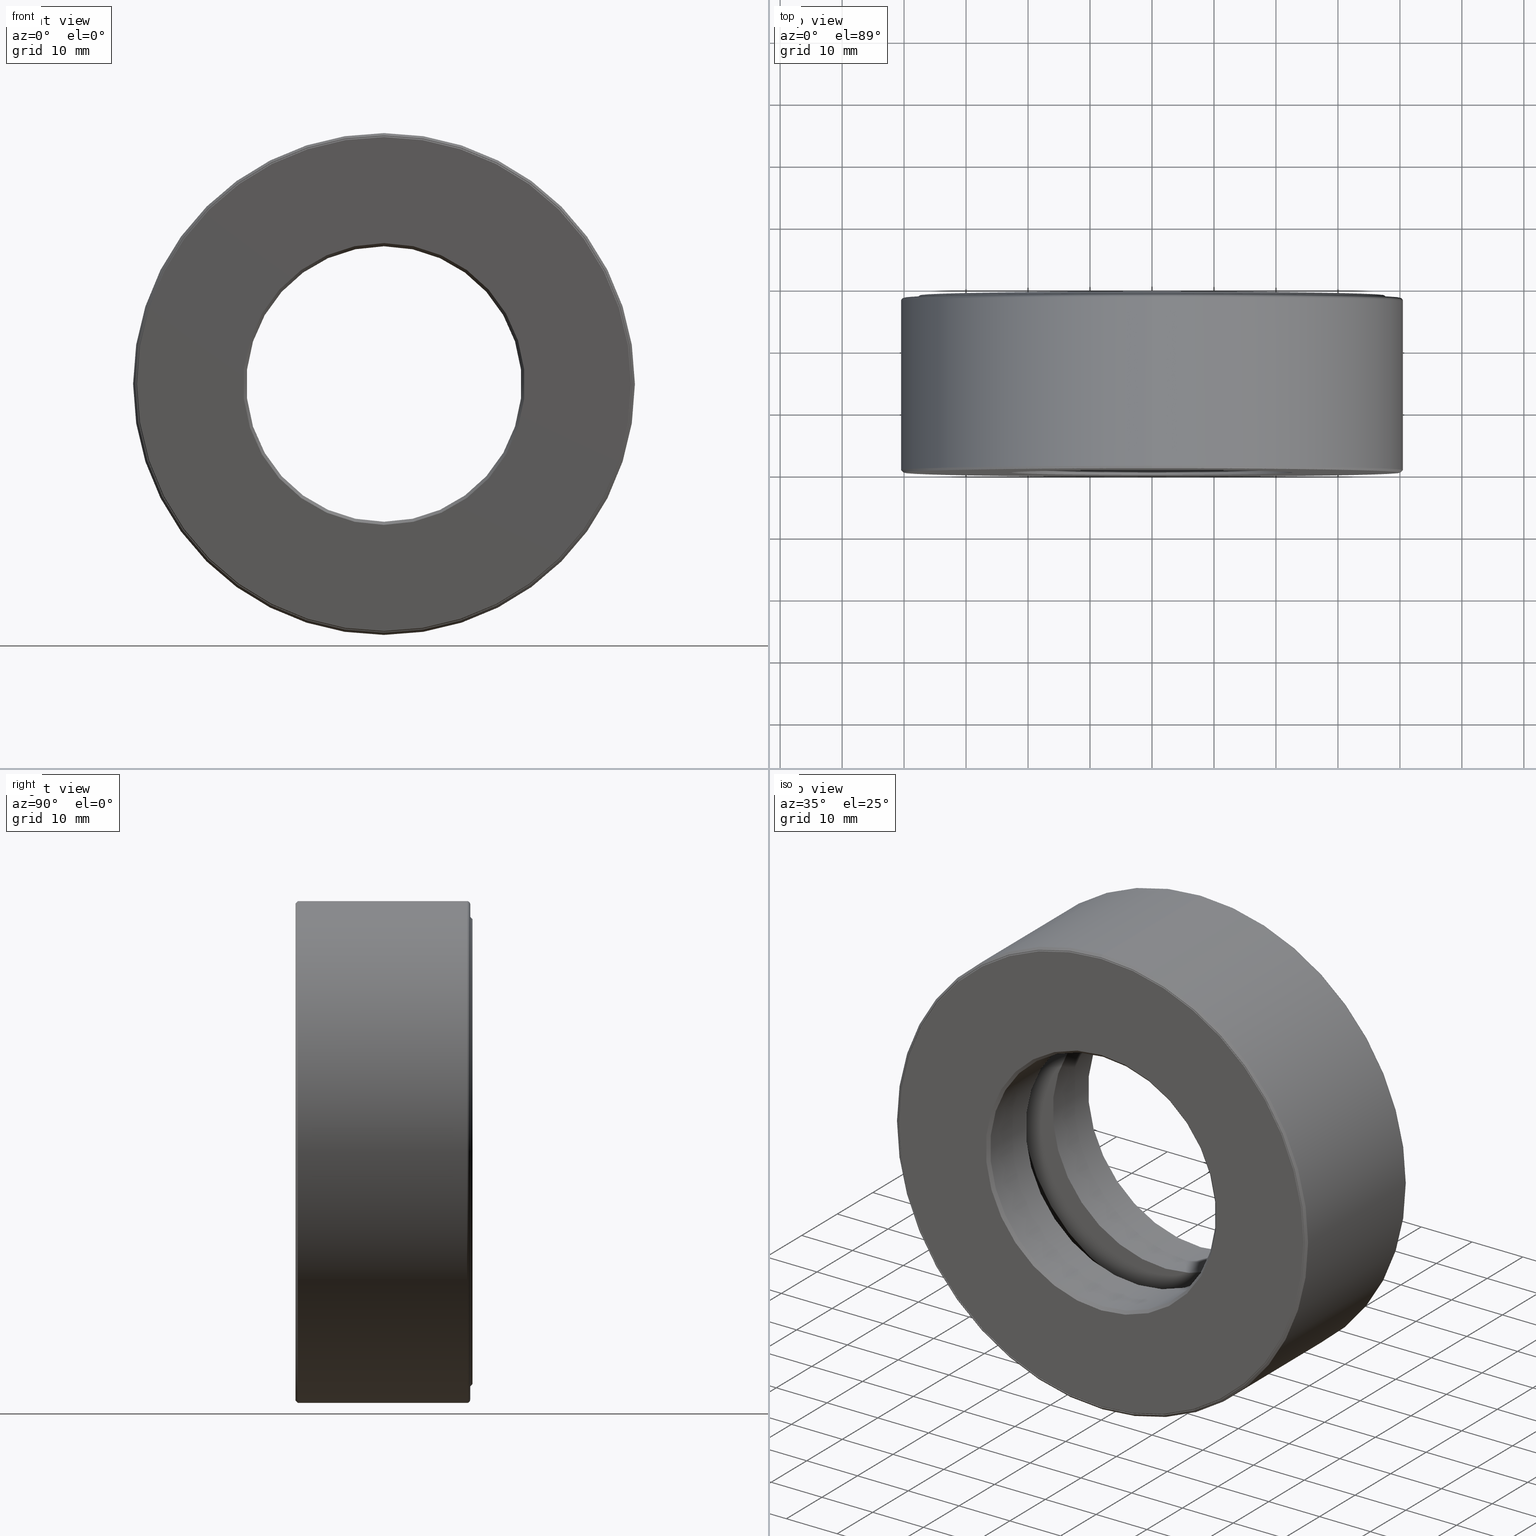
[diagram: canonical four-view strip — front | top / right | iso, engineering-drawing reading convention]
A machine part, canonical four-view strip (front | top / right | iso — engineering-drawing reading convention). The complete STEP part file that produces these views, byte-faithful:
ISO-10303-21;
HEADER;
FILE_DESCRIPTION (( 'STEP AP203' ),
    '1' );
FILE_NAME ('T-100-34.step',
    '2016-06-29T18:27:32',
    ( '' ),
    ( '' ),
    'SwSTEP 2.0',
    'SolidWorks 2016',
    '' );
FILE_SCHEMA (( 'CONFIG_CONTROL_DESIGN' ));
ENDSEC;

DATA;
#1 = CYLINDRICAL_SURFACE ( 'NONE', #434, 0.8750000000000001100 ) ;
#2 = AXIS2_PLACEMENT_3D ( 'NONE', #4, #155, #335 ) ;
#3 = DIRECTION ( 'NONE',  ( -0.0000000000000000000, 1.000000000000000000, -0.0000000000000000000 ) ) ;
#4 = CARTESIAN_POINT ( 'NONE',  ( 0.0000000000000000000, 0.0000000000000000000, 0.0000000000000000000 ) ) ;
#5 = CC_DESIGN_PERSON_AND_ORGANIZATION_ASSIGNMENT ( #395, #278, ( #416 ) ) ;
#6 = ORIENTED_EDGE ( 'NONE', *, *, #64, .T. ) ;
#7 = MANIFOLD_SOLID_BREP ( 'BALLS[3]', #567 ) ;
#8 = DIRECTION ( 'NONE',  ( 0.0000000000000000000, 0.0000000000000000000, 1.000000000000000000 ) ) ;
#9 = ORIENTED_EDGE ( 'NONE', *, *, #231, .F. ) ;
#10 = LOCAL_TIME ( 14, 27, 32.00000000000000000, #195 ) ;
#11 = CARTESIAN_POINT ( 'NONE',  ( 0.0000000000000000000, 0.0000000000000000000, 0.0000000000000000000 ) ) ;
#12 = AXIS2_PLACEMENT_3D ( 'NONE', #122, #266, #501 ) ;
#13 = FACE_OUTER_BOUND ( 'NONE', #394, .T. ) ;
#14 = FACE_BOUND ( 'NONE', #466, .T. ) ;
#15 = ORIENTED_EDGE ( 'NONE', *, *, #206, .T. ) ;
#16 = LOCAL_TIME ( 14, 27, 32.00000000000000000, #578 ) ;
#17 = FACE_OUTER_BOUND ( 'NONE', #21, .T. ) ;
#18 = FACE_OUTER_BOUND ( 'NONE', #215, .T. ) ;
#19 = EDGE_CURVE ( 'NONE', #449, #449, #201, .T. ) ;
#20 = PRODUCT_DEFINITION_SHAPE ( 'NONE', 'NONE',  #355 ) ;
#21 = EDGE_LOOP ( 'NONE', ( #79 ) ) ;
#22 = EDGE_LOOP ( 'NONE', ( #9 ) ) ;
#23 = CONICAL_SURFACE ( 'NONE', #226, 1.568749999999999400, 0.7853981633974812500 ) ;
#24 = DIRECTION ( 'NONE',  ( -0.0000000000000000000, 1.000000000000000000, 0.0000000000000000000 ) ) ;
#25 = CARTESIAN_POINT ( 'NONE',  ( 0.0000000000000000000, 1.109999999999999900, 0.0000000000000000000 ) ) ;
#26 = CARTESIAN_POINT ( 'NONE',  ( -8.911272171840075800E-033, 6.882976390286913400E-017, 0.0000000000000000000 ) ) ;
#27 = ORIENTED_EDGE ( 'NONE', *, *, #377, .T. ) ;
#28 = EDGE_LOOP ( 'NONE', ( #306 ) ) ;
#29 = EDGE_CURVE ( 'NONE', #485, #485, #596, .T. ) ;
#30 = ADVANCED_FACE ( 'NONE', ( #581, #454 ), #270, .F. ) ;
#31 = CLOSED_SHELL ( 'NONE', ( #458, #30, #453, #492, #179, #216, #322, #133, #316, #358, #401, #224, #500, #120, #542, #115 ) ) ;
#32 = PERSON_AND_ORGANIZATION ( #430, #487 ) ;
#33 = SPHERICAL_SURFACE ( 'NONE', #36, 0.2500000000000001100 ) ;
#34 = DIRECTION ( 'NONE',  ( -0.0000000000000000000, 1.000000000000000000, -0.0000000000000000000 ) ) ;
#35 = PLANE ( 'NONE',  #262 ) ;
#36 = AXIS2_PLACEMENT_3D ( 'NONE', #484, #62, #386 ) ;
#37 = CARTESIAN_POINT ( 'NONE',  ( 0.0000000000000000000, 0.7125000000000000200, 1.566749999999999900 ) ) ;
#38 = CIRCLE ( 'NONE', #171, 1.566749999999999900 ) ;
#39 = APPROVAL_STATUS ( 'not_yet_approved' ) ;
#40 = EDGE_LOOP ( 'NONE', ( #598 ) ) ;
#41 = AXIS2_PLACEMENT_3D ( 'NONE', #152, #295, #475 ) ;
#42 = CARTESIAN_POINT ( 'NONE',  ( 0.0000000000000000000, 1.125000000000000000, 0.0000000000000000000 ) ) ;
#43 = CARTESIAN_POINT ( 'NONE',  ( 0.0000000000000000000, 1.125000000000000000, 1.478750000000000000 ) ) ;
#44 = DIRECTION ( 'NONE',  ( 0.0000000000000000000, 0.0000000000000000000, 1.000000000000000000 ) ) ;
#45 = CARTESIAN_POINT ( 'NONE',  ( 0.0000000000000000000, 0.4124999999999999200, 1.514750000000000000 ) ) ;
#46 = AXIS2_PLACEMENT_3D ( 'NONE', #81, #447, #126 ) ;
#47 = DIRECTION ( 'NONE',  ( -0.0000000000000000000, 1.000000000000000000, -0.0000000000000000000 ) ) ;
#48 = PERSON_AND_ORGANIZATION_ROLE ( 'classification_officer' ) ;
#49 = DIRECTION ( 'NONE',  ( 0.0000000000000000000, 0.0000000000000000000, 1.000000000000000000 ) ) ;
#50 = ORIENTED_EDGE ( 'NONE', *, *, #54, .T. ) ;
#51 = LOCAL_TIME ( 14, 27, 32.00000000000000000, #483 ) ;
#52 = TOROIDAL_SURFACE ( 'NONE', #353, 1.314749999999999900, 0.2500000000000000600 ) ;
#53 = DIRECTION ( 'NONE',  ( 0.0000000000000000000, 0.0000000000000000000, 1.000000000000000000 ) ) ;
#54 = EDGE_CURVE ( 'NONE', #193, #193, #480, .T. ) ;
#55 = CLOSED_SHELL ( 'NONE', ( #210 ) ) ;
#56 = MANIFOLD_SOLID_BREP ( 'Revolve3', #209 ) ;
#57 = CARTESIAN_POINT ( 'NONE',  ( 0.0000000000000000000, 1.125000000000000000, 0.0000000000000000000 ) ) ;
#58 = PERSON_AND_ORGANIZATION ( #430, #487 ) ;
#59 = CC_DESIGN_APPROVAL ( #526, ( #416 ) ) ;
#60 = CIRCLE ( 'NONE', #408, 1.593749999999999300 ) ;
#61 = DIRECTION ( 'NONE',  ( 0.0000000000000000000, -1.000000000000000000, 0.0000000000000000000 ) ) ;
#62 = DIRECTION ( 'NONE',  ( 6.982962677686269100E-015, -0.0000000000000000000, 1.000000000000000000 ) ) ;
#63 = ORIENTED_EDGE ( 'NONE', *, *, #80, .T. ) ;
#64 = EDGE_CURVE ( 'NONE', #550, #550, #138, .T. ) ;
#65 = VERTEX_POINT ( 'NONE', #82 ) ;
#66 = EDGE_LOOP ( 'NONE', ( #252 ) ) ;
#67 = AXIS2_PLACEMENT_3D ( 'NONE', #218, #77, #536 ) ;
#68 = CALENDAR_DATE ( 2016, 29, 6 ) ;
#69 = VERTEX_POINT ( 'NONE', #43 ) ;
#70 = CC_DESIGN_PERSON_AND_ORGANIZATION_ASSIGNMENT ( #531, #48, ( #135 ) ) ;
#71 = DIRECTION ( 'NONE',  ( 0.0000000000000000000, 0.0000000000000000000, 1.000000000000000000 ) ) ;
#72 = CIRCLE ( 'NONE', #321, 1.513749999999999900 ) ;
#73 = ORIENTED_EDGE ( 'NONE', *, *, #157, .F. ) ;
#74 = CARTESIAN_POINT ( 'NONE',  ( -1.377127527073202700E-014, 0.5625000000000000000, -1.314749999999999900 ) ) ;
#75 = ORIENTED_EDGE ( 'NONE', *, *, #64, .F. ) ;
#76 = CARTESIAN_POINT ( 'NONE',  ( 0.0000000000000000000, 0.7125000000000000200, 0.0000000000000000000 ) ) ;
#77 = DIRECTION ( 'NONE',  ( -0.0000000000000000000, 1.000000000000000000, -0.0000000000000000000 ) ) ;
#78 = CARTESIAN_POINT ( 'NONE',  ( 0.0000000000000000000, 0.7125000000000000200, 0.0000000000000000000 ) ) ;
#79 = ORIENTED_EDGE ( 'NONE', *, *, #493, .F. ) ;
#80 = EDGE_CURVE ( 'NONE', #148, #148, #38, .T. ) ;
#81 = CARTESIAN_POINT ( 'NONE',  ( 0.0000000000000000000, 0.4124999999999999200, 0.0000000000000000000 ) ) ;
#82 = CARTESIAN_POINT ( 'NONE',  ( 0.0000000000000000000, -6.781474164570169800E-017, 1.573749999999999800 ) ) ;
#83 = APPROVAL_DATE_TIME ( #300, #526 ) ;
#84 = FACE_OUTER_BOUND ( 'NONE', #22, .T. ) ;
#85 = DIRECTION ( 'NONE',  ( -0.0000000000000000000, 1.000000000000000000, -0.0000000000000000000 ) ) ;
#86 = AXIS2_PLACEMENT_3D ( 'NONE', #248, #304, #159 ) ;
#87 = ORIENTED_EDGE ( 'NONE', *, *, #185, .T. ) ;
#88 = CARTESIAN_POINT ( 'NONE',  ( 4.590425090244009700E-015, 0.5625000000000000000, 1.314749999999999900 ) ) ;
#89 =( NAMED_UNIT ( * ) SI_UNIT ( $, .STERADIAN. ) SOLID_ANGLE_UNIT ( ) );
#90 = EDGE_LOOP ( 'NONE', ( #63 ) ) ;
#91 = DIRECTION ( 'NONE',  ( -3.491481338843134500E-015, 0.0000000000000000000, -1.000000000000000000 ) ) ;
#92 = MANIFOLD_SOLID_BREP ( 'BALLS[2]', #525 ) ;
#93 = VERTEX_POINT ( 'NONE', #424 ) ;
#94 = CARTESIAN_POINT ( 'NONE',  ( 0.0000000000000000000, 1.109999999999999900, 0.0000000000000000000 ) ) ;
#95 = EDGE_CURVE ( 'NONE', #488, #488, #337, .T. ) ;
#96 = DIRECTION ( 'NONE',  ( 0.0000000000000000000, -0.0000000000000000000, -1.000000000000000000 ) ) ;
#97 = EDGE_LOOP ( 'NONE', ( #502 ) ) ;
#98 = DIRECTION ( 'NONE',  ( -0.0000000000000000000, 1.000000000000000000, -0.0000000000000000000 ) ) ;
#99 = CC_DESIGN_PERSON_AND_ORGANIZATION_ASSIGNMENT ( #32, #548, ( #416 ) ) ;
#100 = PLANE ( 'NONE',  #340 ) ;
#101 = VERTEX_POINT ( 'NONE', #467 ) ;
#102 = CIRCLE ( 'NONE', #194, 1.478750000000000000 ) ;
#103 = DIRECTION ( 'NONE',  ( 0.0000000000000000000, 0.0000000000000000000, 1.000000000000000000 ) ) ;
#104 = AXIS2_PLACEMENT_3D ( 'NONE', #88, #139, #91 ) ;
#105 = EDGE_LOOP ( 'NONE', ( #354 ) ) ;
#106 = EDGE_LOOP ( 'NONE', ( #428 ) ) ;
#107 = DIRECTION ( 'NONE',  ( 0.0000000000000000000, -0.0000000000000000000, -1.000000000000000000 ) ) ;
#108 = CIRCLE ( 'NONE', #366, 1.578749999999999900 ) ;
#109 = EDGE_LOOP ( 'NONE', ( #230 ) ) ;
#110 = ORIENTED_EDGE ( 'NONE', *, *, #314, .F. ) ;
#111 = DATE_AND_TIME ( #68, #51 ) ;
#112 = AXIS2_PLACEMENT_3D ( 'NONE', #554, #551, #280 ) ;
#113 = FACE_BOUND ( 'NONE', #109, .T. ) ;
#114 = FACE_OUTER_BOUND ( 'NONE', #370, .T. ) ;
#115 = ADVANCED_FACE ( 'NONE', ( #244, #393 ), #35, .F. ) ;
#116 = EDGE_LOOP ( 'NONE', ( #413 ) ) ;
#117 = DIRECTION ( 'NONE',  ( 0.0000000000000000000, 0.0000000000000000000, 1.000000000000000000 ) ) ;
#118 = DATE_AND_TIME ( #404, #357 ) ;
#119 = DIRECTION ( 'NONE',  ( -0.0000000000000000000, 1.000000000000000000, -0.0000000000000000000 ) ) ;
#120 = ADVANCED_FACE ( 'NONE', ( #342, #14 ), #444, .F. ) ;
#121 = CYLINDRICAL_SURFACE ( 'NONE', #2, 1.573750000000000200 ) ;
#122 = CARTESIAN_POINT ( 'NONE',  ( 0.0000000000000000000, 0.4124999999999999200, 0.0000000000000000000 ) ) ;
#123 = CARTESIAN_POINT ( 'NONE',  ( 0.0000000000000000000, 0.4124999999999999200, 0.0000000000000000000 ) ) ;
#124 = EDGE_CURVE ( 'NONE', #220, #220, #265, .T. ) ;
#125 = EDGE_LOOP ( 'NONE', ( #345 ) ) ;
#126 = DIRECTION ( 'NONE',  ( 0.0000000000000000000, 0.0000000000000000000, 1.000000000000000000 ) ) ;
#127 = EDGE_LOOP ( 'NONE', ( #73 ) ) ;
#128 = ADVANCED_FACE ( 'NONE', ( #520, #486 ), #556, .T. ) ;
#129 = ORIENTED_EDGE ( 'NONE', *, *, #206, .F. ) ;
#130 = PERSON_AND_ORGANIZATION ( #430, #487 ) ;
#131 = CARTESIAN_POINT ( 'NONE',  ( 0.0000000000000000000, 1.089999999999999900, 0.0000000000000000000 ) ) ;
#132 = VERTEX_POINT ( 'NONE', #599 ) ;
#133 = ADVANCED_FACE ( 'NONE', ( #606, #435 ), #198, .T. ) ;
#134 = DIRECTION ( 'NONE',  ( 0.0000000000000000000, -1.000000000000000000, 0.0000000000000000000 ) ) ;
#135 = SECURITY_CLASSIFICATION ( '', '', #462 ) ;
#136 = CARTESIAN_POINT ( 'NONE',  ( 0.0000000000000000000, 0.0000000000000000000, 0.0000000000000000000 ) ) ;
#137 = DATE_TIME_ROLE ( 'creation_date' ) ;
#138 = CIRCLE ( 'NONE', #142, 0.8750000000000000000 ) ;
#139 = DIRECTION ( 'NONE',  ( -1.000000000000000000, 0.0000000000000000000, 3.491481338843134500E-015 ) ) ;
#140 = FACE_OUTER_BOUND ( 'NONE', #105, .T. ) ;
#141 = DIRECTION ( 'NONE',  ( 0.0000000000000000000, 0.0000000000000000000, 1.000000000000000000 ) ) ;
#142 = AXIS2_PLACEMENT_3D ( 'NONE', #498, #274, #442 ) ;
#143 = PLANE ( 'NONE',  #397 ) ;
#144 = CARTESIAN_POINT ( 'NONE',  ( 0.0000000000000000000, 0.4125000000000000900, 0.8750000000000001100 ) ) ;
#145 = ORIENTED_EDGE ( 'NONE', *, *, #474, .T. ) ;
#146 = EDGE_LOOP ( 'NONE', ( #576 ) ) ;
#147 = DIRECTION ( 'NONE',  ( -0.0000000000000000000, 1.000000000000000000, -0.0000000000000000000 ) ) ;
#148 = VERTEX_POINT ( 'NONE', #234 ) ;
#149 = FACE_OUTER_BOUND ( 'NONE', #356, .T. ) ;
#150 = DIRECTION ( 'NONE',  ( 0.0000000000000000000, 0.0000000000000000000, 1.000000000000000000 ) ) ;
#151 = EDGE_CURVE ( 'NONE', #101, #101, #348, .T. ) ;
#152 = CARTESIAN_POINT ( 'NONE',  ( 0.0000000000000000000, -6.829619984160658000E-017, 0.0000000000000000000 ) ) ;
#153 = MANIFOLD_SOLID_BREP ( 'Revolve2[1]', #31 ) ;
#154 = EDGE_LOOP ( 'NONE', ( #368 ) ) ;
#155 = DIRECTION ( 'NONE',  ( -0.0000000000000000000, 1.000000000000000000, -0.0000000000000000000 ) ) ;
#156 = ORIENTED_EDGE ( 'NONE', *, *, #124, .T. ) ;
#157 = EDGE_CURVE ( 'NONE', #309, #309, #72, .T. ) ;
#158 = AXIS2_PLACEMENT_3D ( 'NONE', #94, #147, #471 ) ;
#159 = DIRECTION ( 'NONE',  ( 0.0000000000000000000, 0.0000000000000000000, 1.000000000000000000 ) ) ;
#160 = ORIENTED_EDGE ( 'NONE', *, *, #95, .F. ) ;
#161 = EDGE_LOOP ( 'NONE', ( #15 ) ) ;
#162 = COORDINATED_UNIVERSAL_TIME_OFFSET ( 5, 0, .BEHIND. ) ;
#163 = FACE_OUTER_BOUND ( 'NONE', #116, .T. ) ;
#164 = AXIS2_PLACEMENT_3D ( 'NONE', #301, #432, #53 ) ;
#165 = ORIENTED_EDGE ( 'NONE', *, *, #185, .F. ) ;
#166 = APPROVAL_DATE_TIME ( #111, #359 ) ;
#167 = CC_DESIGN_DATE_AND_TIME_ASSIGNMENT ( #312, #374, ( #135 ) ) ;
#168 = FACE_OUTER_BOUND ( 'NONE', #583, .T. ) ;
#169 = CARTESIAN_POINT ( 'NONE',  ( -1.175064960778426000E-016, 0.4125000000000000300, 0.0000000000000000000 ) ) ;
#170 = DIRECTION ( 'NONE',  ( -0.0000000000000000000, 1.000000000000000000, -0.0000000000000000000 ) ) ;
#171 = AXIS2_PLACEMENT_3D ( 'NONE', #217, #178, #592 ) ;
#172 = ORIENTED_EDGE ( 'NONE', *, *, #540, .F. ) ;
#173 = DIRECTION ( 'NONE',  ( 0.0000000000000000000, 0.0000000000000000000, 1.000000000000000000 ) ) ;
#174 = FACE_OUTER_BOUND ( 'NONE', #415, .T. ) ;
#175 = ADVANCED_FACE ( 'NONE', ( ), #284, .T. ) ;
#176 = DIRECTION ( 'NONE',  ( -0.0000000000000000000, 1.000000000000000000, -0.0000000000000000000 ) ) ;
#177 = DIRECTION ( 'NONE',  ( 0.0000000000000000000, 0.0000000000000000000, 1.000000000000000000 ) ) ;
#178 = DIRECTION ( 'NONE',  ( -0.0000000000000000000, 1.000000000000000000, -0.0000000000000000000 ) ) ;
#179 = ADVANCED_FACE ( 'NONE', ( #352, #433 ), #273, .F. ) ;
#180 = EDGE_CURVE ( 'NONE', #579, #579, #60, .T. ) ;
#181 = EDGE_LOOP ( 'NONE', ( #160 ) ) ;
#182 = MECHANICAL_CONTEXT ( 'NONE', #603, 'mechanical' ) ;
#183 = APPROVAL_PERSON_ORGANIZATION ( #308, #526, #333 ) ;
#184 = CARTESIAN_POINT ( 'NONE',  ( 0.0000000000000000000, 0.02000000000000046900, 0.0000000000000000000 ) ) ;
#185 = EDGE_CURVE ( 'NONE', #65, #65, #489, .T. ) ;
#186 = CIRCLE ( 'NONE', #164, 1.114749999999999900 ) ;
#187 = DIRECTION ( 'NONE',  ( 0.0000000000000000000, -0.0000000000000000000, -1.000000000000000000 ) ) ;
#188 = DIRECTION ( 'NONE',  ( 1.000000000000000000, 0.0000000000000000000, 0.0000000000000000000 ) ) ;
#189 = CARTESIAN_POINT ( 'NONE',  ( 0.0000000000000000000, 1.104999999999999500, 0.8750000000000001100 ) ) ;
#190 = DIRECTION ( 'NONE',  ( 0.0000000000000000000, -1.000000000000000000, 0.0000000000000000000 ) ) ;
#191 = EDGE_LOOP ( 'NONE', ( #172 ) ) ;
#192 = CARTESIAN_POINT ( 'NONE',  ( 0.0000000000000000000, 0.4124999999999999200, 1.573749999999999800 ) ) ;
#193 = VERTEX_POINT ( 'NONE', #45 ) ;
#194 = AXIS2_PLACEMENT_3D ( 'NONE', #57, #479, #8 ) ;
#195 = COORDINATED_UNIVERSAL_TIME_OFFSET ( 5, 0, .BEHIND. ) ;
#196 = FACE_OUTER_BOUND ( 'NONE', #251, .T. ) ;
#197 = PLANE ( 'NONE',  #298 ) ;
#198 = CYLINDRICAL_SURFACE ( 'NONE', #305, 1.593749999999999600 ) ;
#199 = ORIENTED_EDGE ( 'NONE', *, *, #575, .T. ) ;
#200 = AXIS2_PLACEMENT_3D ( 'NONE', #42, #134, #277 ) ;
#201 = CIRCLE ( 'NONE', #555, 1.513749999999999900 ) ;
#202 = PERSON_AND_ORGANIZATION ( #430, #487 ) ;
#203 = CC_DESIGN_APPROVAL ( #359, ( #135 ) ) ;
#204 = SPHERICAL_SURFACE ( 'NONE', #330, 0.2500000000000001100 ) ;
#205 = CIRCLE ( 'NONE', #482, 1.573749999999999800 ) ;
#206 = EDGE_CURVE ( 'NONE', #363, #363, #552, .T. ) ;
#207 = EDGE_LOOP ( 'NONE', ( #558 ) ) ;
#208 = PLANE ( 'NONE',  #283 ) ;
#209 = CLOSED_SHELL ( 'NONE', ( #175 ) ) ;
#210 = ADVANCED_FACE ( 'NONE', ( ), #302, .T. ) ;
#211 = CARTESIAN_POINT ( 'NONE',  ( 0.0000000000000000000, 1.125000000000000000, 0.0000000000000000000 ) ) ;
#212 = CARTESIAN_POINT ( 'NONE',  ( 0.0000000000000000000, 0.005000000000000232600, 0.0000000000000000000 ) ) ;
#213 = DIRECTION ( 'NONE',  ( -0.0000000000000000000, 1.000000000000000000, -0.0000000000000000000 ) ) ;
#214 = CARTESIAN_POINT ( 'NONE',  ( 0.0000000000000000000, 0.0000000000000000000, 0.0000000000000000000 ) ) ;
#215 = EDGE_LOOP ( 'NONE', ( #165 ) ) ;
#216 = ADVANCED_FACE ( 'NONE', ( #594, #13 ), #143, .F. ) ;
#217 = CARTESIAN_POINT ( 'NONE',  ( 0.0000000000000000000, 1.037000000000000100, 0.0000000000000000000 ) ) ;
#218 = CARTESIAN_POINT ( 'NONE',  ( 0.0000000000000000000, 0.5624999999999998900, 0.0000000000000000000 ) ) ;
#219 = CALENDAR_DATE ( 2016, 29, 6 ) ;
#220 = VERTEX_POINT ( 'NONE', #516 ) ;
#221 = DIRECTION ( 'NONE',  ( 0.0000000000000000000, 0.0000000000000000000, 1.000000000000000000 ) ) ;
#222 = FACE_BOUND ( 'NONE', #310, .T. ) ;
#223 = APPLICATION_PROTOCOL_DEFINITION ( 'international standard', 'config_control_design', 1994, #423 ) ;
#224 = ADVANCED_FACE ( 'NONE', ( #459, #533 ), #23, .T. ) ;
#225 = DIRECTION ( 'NONE',  ( -0.0000000000000000000, 1.000000000000000000, -0.0000000000000000000 ) ) ;
#226 = AXIS2_PLACEMENT_3D ( 'NONE', #375, #524, #571 ) ;
#227 = EDGE_LOOP ( 'NONE', ( #145 ) ) ;
#228 = CARTESIAN_POINT ( 'NONE',  ( 0.0000000000000000000, 0.7125000000000000200, 0.8750000000000001100 ) ) ;
#229 = ORIENTED_EDGE ( 'NONE', *, *, #157, .T. ) ;
#230 = ORIENTED_EDGE ( 'NONE', *, *, #151, .T. ) ;
#231 = EDGE_CURVE ( 'NONE', #593, #593, #407, .T. ) ;
#232 = CYLINDRICAL_SURFACE ( 'NONE', #549, 0.8750000000000001100 ) ;
#233 = CARTESIAN_POINT ( 'NONE',  ( 0.0000000000000000000, 1.089999999999999900, 0.0000000000000000000 ) ) ;
#234 = CARTESIAN_POINT ( 'NONE',  ( 0.0000000000000000000, 1.037000000000000100, 1.566749999999999900 ) ) ;
#235 = CARTESIAN_POINT ( 'NONE',  ( 0.0000000000000000000, -6.722907171908147400E-017, 0.0000000000000000000 ) ) ;
#236 = EDGE_LOOP ( 'NONE', ( #229 ) ) ;
#237 = ORIENTED_EDGE ( 'NONE', *, *, #241, .F. ) ;
#238 = CARTESIAN_POINT ( 'NONE',  ( -8.058413836519987000E-033, -6.805547074365413900E-017, 0.0000000000000000000 ) ) ;
#239 = VERTEX_POINT ( 'NONE', #289 ) ;
#240 = CIRCLE ( 'NONE', #343, 0.8750000000000001100 ) ;
#241 = EDGE_CURVE ( 'NONE', #250, #250, #186, .T. ) ;
#242 = DIRECTION ( 'NONE',  ( -0.0000000000000000000, 1.000000000000000000, 0.0000000000000000000 ) ) ;
#243 = CC_DESIGN_SECURITY_CLASSIFICATION ( #135, ( #416 ) ) ;
#244 = FACE_BOUND ( 'NONE', #445, .T. ) ;
#245 = EDGE_CURVE ( 'NONE', #239, #239, #205, .T. ) ;
#246 = EDGE_LOOP ( 'NONE', ( #385 ) ) ;
#247 = AXIS2_PLACEMENT_3D ( 'NONE', #136, #141, #188 ) ;
#248 = CARTESIAN_POINT ( 'NONE',  ( 0.0000000000000000000, 1.104999999999999500, 0.0000000000000000000 ) ) ;
#249 = COORDINATED_UNIVERSAL_TIME_OFFSET ( 5, 0, .BEHIND. ) ;
#250 = VERTEX_POINT ( 'NONE', #595 ) ;
#251 = EDGE_LOOP ( 'NONE', ( #75 ) ) ;
#252 = ORIENTED_EDGE ( 'NONE', *, *, #575, .F. ) ;
#253 = AXIS2_PLACEMENT_3D ( 'NONE', #233, #557, #288 ) ;
#254 = CIRCLE ( 'NONE', #443, 1.573750000000000200 ) ;
#255 = FACE_OUTER_BOUND ( 'NONE', #40, .T. ) ;
#256 = AXIS2_PLACEMENT_3D ( 'NONE', #538, #119, #403 ) ;
#257 = EDGE_LOOP ( 'NONE', ( #402 ) ) ;
#258 = EDGE_LOOP ( 'NONE', ( #311 ) ) ;
#259 = AXIS2_PLACEMENT_3D ( 'NONE', #11, #344, #572 ) ;
#260 = TOROIDAL_SURFACE ( 'NONE', #303, 1.573749999999999800, 0.02000000000000005900 ) ;
#261 = DIRECTION ( 'NONE',  ( 0.0000000000000000000, 0.0000000000000000000, 1.000000000000000000 ) ) ;
#262 = AXIS2_PLACEMENT_3D ( 'NONE', #169, #411, #187 ) ;
#263 = DIRECTION ( 'NONE',  ( -0.0000000000000000000, 1.000000000000000000, -0.0000000000000000000 ) ) ;
#264 = ADVANCED_FACE ( 'NONE', ( #420, #149 ), #197, .T. ) ;
#265 = CIRCLE ( 'NONE', #253, 1.593750000000000000 ) ;
#266 = DIRECTION ( 'NONE',  ( 0.0000000000000000000, -1.000000000000000000, 0.0000000000000000000 ) ) ;
#267 = CLOSED_SHELL ( 'NONE', ( #264, #503, #450, #591, #410, #276, #128, #497 ) ) ;
#268 = DIRECTION ( 'NONE',  ( 0.0000000000000000000, 0.0000000000000000000, 1.000000000000000000 ) ) ;
#269 = ORIENTED_EDGE ( 'NONE', *, *, #474, .F. ) ;
#270 = PLANE ( 'NONE',  #12 ) ;
#271 = DIRECTION ( 'NONE',  ( 0.0000000000000000000, 0.0000000000000000000, 1.000000000000000000 ) ) ;
#272 = CIRCLE ( 'NONE', #535, 1.573749999999999800 ) ;
#273 = CYLINDRICAL_SURFACE ( 'NONE', #112, 1.513749999999999900 ) ;
#274 = DIRECTION ( 'NONE',  ( -0.0000000000000000000, 1.000000000000000000, -0.0000000000000000000 ) ) ;
#275 = DIRECTION ( 'NONE',  ( 1.047444401652940000E-014, 0.0000000000000000000, 1.000000000000000000 ) ) ;
#276 = ADVANCED_FACE ( 'NONE', ( #513, #313 ), #338, .T. ) ;
#277 = DIRECTION ( 'NONE',  ( 0.0000000000000000000, 0.0000000000000000000, -1.000000000000000000 ) ) ;
#278 = PERSON_AND_ORGANIZATION_ROLE ( 'design_supplier' ) ;
#279 = EDGE_LOOP ( 'NONE', ( #398 ) ) ;
#280 = DIRECTION ( 'NONE',  ( 0.0000000000000000000, 0.0000000000000000000, 1.000000000000000000 ) ) ;
#281 = EDGE_LOOP ( 'NONE', ( #110 ) ) ;
#282 = AXIS2_PLACEMENT_3D ( 'NONE', #76, #176, #173 ) ;
#283 = AXIS2_PLACEMENT_3D ( 'NONE', #26, #588, #261 ) ;
#284 = SPHERICAL_SURFACE ( 'NONE', #347, 0.2500000000000001100 ) ;
#285 = APPROVAL_STATUS ( 'not_yet_approved' ) ;
#286 = DIRECTION ( 'NONE',  ( 0.0000000000000000000, 0.0000000000000000000, -1.000000000000000000 ) ) ;
#287 = APPROVAL_ROLE ( '' ) ;
#288 = DIRECTION ( 'NONE',  ( 0.0000000000000000000, 0.0000000000000000000, 1.000000000000000000 ) ) ;
#289 = CARTESIAN_POINT ( 'NONE',  ( 0.0000000000000000000, 1.089999999999999900, 1.573749999999999800 ) ) ;
#290 = ORIENTED_EDGE ( 'NONE', *, *, #391, .F. ) ;
#291 = ORIENTED_EDGE ( 'NONE', *, *, #231, .T. ) ;
#292 = CARTESIAN_POINT ( 'NONE',  ( 0.0000000000000000000, 1.089999999999999900, 0.0000000000000000000 ) ) ;
#293 = AXIS2_PLACEMENT_3D ( 'NONE', #597, #225, #419 ) ;
#294 = CIRCLE ( 'NONE', #577, 1.114749999999999900 ) ;
#295 = DIRECTION ( 'NONE',  ( -0.0000000000000000000, 1.000000000000000000, -0.0000000000000000000 ) ) ;
#296 = DIRECTION ( 'NONE',  ( 0.0000000000000000000, -0.0000000000000000000, -1.000000000000000000 ) ) ;
#297 = ORIENTED_EDGE ( 'NONE', *, *, #534, .T. ) ;
#298 = AXIS2_PLACEMENT_3D ( 'NONE', #381, #61, #96 ) ;
#299 = EDGE_LOOP ( 'NONE', ( #290 ) ) ;
#300 = DATE_AND_TIME ( #219, #16 ) ;
#301 = CARTESIAN_POINT ( 'NONE',  ( 0.0000000000000000000, 0.4125000000000000300, 0.0000000000000000000 ) ) ;
#302 = SPHERICAL_SURFACE ( 'NONE', #104, 0.2500000000000001100 ) ;
#303 = AXIS2_PLACEMENT_3D ( 'NONE', #336, #568, #528 ) ;
#304 = DIRECTION ( 'NONE',  ( -0.0000000000000000000, 1.000000000000000000, -0.0000000000000000000 ) ) ;
#305 = AXIS2_PLACEMENT_3D ( 'NONE', #517, #85, #455 ) ;
#306 = ORIENTED_EDGE ( 'NONE', *, *, #19, .T. ) ;
#307 = ORIENTED_EDGE ( 'NONE', *, *, #180, .F. ) ;
#308 = PERSON_AND_ORGANIZATION ( #430, #487 ) ;
#309 = VERTEX_POINT ( 'NONE', #464 ) ;
#310 = EDGE_LOOP ( 'NONE', ( #199 ) ) ;
#311 = ORIENTED_EDGE ( 'NONE', *, *, #29, .F. ) ;
#312 = DATE_AND_TIME ( #431, #10 ) ;
#313 = FACE_BOUND ( 'NONE', #181, .T. ) ;
#314 = EDGE_CURVE ( 'NONE', #602, #602, #240, .T. ) ;
#315 = CC_DESIGN_PERSON_AND_ORGANIZATION_ASSIGNMENT ( #440, #421, ( #339 ) ) ;
#316 = ADVANCED_FACE ( 'NONE', ( #168, #222 ), #364, .T. ) ;
#317 = DIRECTION ( 'NONE',  ( -0.0000000000000000000, 1.000000000000000000, -0.0000000000000000000 ) ) ;
#318 = DIRECTION ( 'NONE',  ( -0.0000000000000000000, 1.000000000000000000, -0.0000000000000000000 ) ) ;
#319 = CONICAL_SURFACE ( 'NONE', #86, 0.8750000000000001100, 0.7853981633974415100 ) ;
#320 = CARTESIAN_POINT ( 'NONE',  ( 0.0000000000000000000, 0.0000000000000000000, 0.0000000000000000000 ) ) ;
#321 = AXIS2_PLACEMENT_3D ( 'NONE', #334, #511, #49 ) ;
#322 = ADVANCED_FACE ( 'NONE', ( #140, #114 ), #260, .T. ) ;
#323 = PLANE ( 'NONE',  #495 ) ;
#324 = EDGE_LOOP ( 'NONE', ( #291 ) ) ;
#325 = DIRECTION ( 'NONE',  ( 0.0000000000000000000, 0.0000000000000000000, 1.000000000000000000 ) ) ;
#326 = APPROVAL_PERSON_ORGANIZATION ( #130, #359, #367 ) ;
#327 = DIRECTION ( 'NONE',  ( 0.0000000000000000000, 0.0000000000000000000, 1.000000000000000000 ) ) ;
#328 = PERSON_AND_ORGANIZATION_ROLE ( 'creator' ) ;
#329 = FACE_OUTER_BOUND ( 'NONE', #589, .T. ) ;
#330 = AXIS2_PLACEMENT_3D ( 'NONE', #74, #362, #275 ) ;
#331 =( LENGTH_UNIT ( ) NAMED_UNIT ( * ) SI_UNIT ( $, .METRE. ) );
#332 = EDGE_LOOP ( 'NONE', ( #361 ) ) ;
#333 = APPROVAL_ROLE ( '' ) ;
#334 = CARTESIAN_POINT ( 'NONE',  ( 0.0000000000000000000, 1.089999999999999900, 0.0000000000000000000 ) ) ;
#335 = DIRECTION ( 'NONE',  ( 0.0000000000000000000, 0.0000000000000000000, 1.000000000000000000 ) ) ;
#336 = CARTESIAN_POINT ( 'NONE',  ( 0.0000000000000000000, 1.089999999999999900, 0.0000000000000000000 ) ) ;
#337 = CIRCLE ( 'NONE', #426, 0.8950000000000002400 ) ;
#338 = PLANE ( 'NONE',  #383 ) ;
#339 = PRODUCT ( 'T-100-34', 'T-100-34', '', ( #182 ) ) ;
#340 = AXIS2_PLACEMENT_3D ( 'NONE', #238, #242, #478 ) ;
#341 = CIRCLE ( 'NONE', #460, 1.514750000000000000 ) ;
#342 = FACE_OUTER_BOUND ( 'NONE', #279, .T. ) ;
#343 = AXIS2_PLACEMENT_3D ( 'NONE', #384, #563, #429 ) ;
#344 = DIRECTION ( 'NONE',  ( -0.0000000000000000000, 1.000000000000000000, -0.0000000000000000000 ) ) ;
#345 = ORIENTED_EDGE ( 'NONE', *, *, #391, .T. ) ;
#346 = SHAPE_DEFINITION_REPRESENTATION ( #20, #452 ) ;
#347 = AXIS2_PLACEMENT_3D ( 'NONE', #414, #286, #604 ) ;
#348 = CIRCLE ( 'NONE', #293, 0.8950000000000001300 ) ;
#349 = ORIENTED_EDGE ( 'NONE', *, *, #245, .F. ) ;
#350 = LOCAL_TIME ( 14, 27, 32.00000000000000000, #249 ) ;
#351 = FACE_OUTER_BOUND ( 'NONE', #258, .T. ) ;
#352 = FACE_OUTER_BOUND ( 'NONE', #127, .T. ) ;
#353 = AXIS2_PLACEMENT_3D ( 'NONE', #543, #399, #325 ) ;
#354 = ORIENTED_EDGE ( 'NONE', *, *, #377, .F. ) ;
#355 = PRODUCT_DEFINITION ( 'UNKNOWN', '', #416, #546 ) ;
#356 = EDGE_LOOP ( 'NONE', ( #129 ) ) ;
#357 = LOCAL_TIME ( 14, 27, 32.00000000000000000, #162 ) ;
#358 = ADVANCED_FACE ( 'NONE', ( #562, #529 ), #100, .F. ) ;
#359 = APPROVAL ( #39, 'UNSPECIFIED' ) ;
#360 = CARTESIAN_POINT ( 'NONE',  ( 0.0000000000000000000, -6.829619984160658000E-017, 0.0000000000000000000 ) ) ;
#361 = ORIENTED_EDGE ( 'NONE', *, *, #29, .T. ) ;
#362 = DIRECTION ( 'NONE',  ( 1.000000000000000000, 0.0000000000000000000, -1.047444401652940000E-014 ) ) ;
#363 = VERTEX_POINT ( 'NONE', #37 ) ;
#364 = CONICAL_SURFACE ( 'NONE', #41, 1.578749999999999900, 0.7853981633974324000 ) ;
#365 = CARTESIAN_POINT ( 'NONE',  ( 0.0000000000000000000, 0.7125000000000000200, 1.514750000000000000 ) ) ;
#366 = AXIS2_PLACEMENT_3D ( 'NONE', #360, #451, #553 ) ;
#367 = APPROVAL_ROLE ( '' ) ;
#368 = ORIENTED_EDGE ( 'NONE', *, *, #95, .T. ) ;
#369 =( CONVERSION_BASED_UNIT ( 'INCH', #371 ) LENGTH_UNIT ( ) NAMED_UNIT ( #477 ) );
#370 = EDGE_LOOP ( 'NONE', ( #156 ) ) ;
#371 = LENGTH_MEASURE_WITH_UNIT ( LENGTH_MEASURE( 0.02539999999999999900 ), #331 );
#372 =( GEOMETRIC_REPRESENTATION_CONTEXT ( 3 ) GLOBAL_UNCERTAINTY_ASSIGNED_CONTEXT ( ( #387 ) ) GLOBAL_UNIT_ASSIGNED_CONTEXT ( ( #369, #560, #89 ) ) REPRESENTATION_CONTEXT ( 'NONE', 'WORKASPACE' ) );
#373 = DIRECTION ( 'NONE',  ( 0.0000000000000000000, 0.0000000000000000000, 1.000000000000000000 ) ) ;
#374 = DATE_TIME_ROLE ( 'classification_date' ) ;
#375 = CARTESIAN_POINT ( 'NONE',  ( 0.0000000000000000000, -6.722907171908147400E-017, 0.0000000000000000000 ) ) ;
#376 = ORIENTED_EDGE ( 'NONE', *, *, #519, .F. ) ;
#377 = EDGE_CURVE ( 'NONE', #132, #132, #389, .T. ) ;
#378 = DIRECTION ( 'NONE',  ( -0.0000000000000000000, 1.000000000000000000, 0.0000000000000000000 ) ) ;
#379 = CYLINDRICAL_SURFACE ( 'NONE', #259, 1.573750000000000200 ) ;
#380 = FACE_BOUND ( 'NONE', #281, .T. ) ;
#381 = CARTESIAN_POINT ( 'NONE',  ( 0.0000000000000000000, 0.7125000000000000200, 0.0000000000000000000 ) ) ;
#382 = MANIFOLD_SOLID_BREP ( 'BALLS[1]', #55 ) ;
#383 = AXIS2_PLACEMENT_3D ( 'NONE', #522, #378, #150 ) ;
#384 = CARTESIAN_POINT ( 'NONE',  ( 0.0000000000000000000, 1.104999999999999500, 0.0000000000000000000 ) ) ;
#385 = ORIENTED_EDGE ( 'NONE', *, *, #124, .F. ) ;
#386 = DIRECTION ( 'NONE',  ( -1.000000000000000000, 0.0000000000000000000, 6.982962677686269100E-015 ) ) ;
#387 = UNCERTAINTY_MEASURE_WITH_UNIT (LENGTH_MEASURE( 1.000000000000000100E-005 ), #369, 'distance_accuracy_value', 'NONE');
#388 = APPROVAL_PERSON_ORGANIZATION ( #58, #490, #287 ) ;
#389 = CIRCLE ( 'NONE', #158, 1.573749999999999800 ) ;
#390 = CARTESIAN_POINT ( 'NONE',  ( 0.0000000000000000000, 0.7125000000000000200, 0.0000000000000000000 ) ) ;
#391 = EDGE_CURVE ( 'NONE', #69, #69, #102, .T. ) ;
#392 = PRODUCT_RELATED_PRODUCT_CATEGORY ( 'detail', '', ( #339 ) ) ;
#393 = FACE_OUTER_BOUND ( 'NONE', #527, .T. ) ;
#394 = EDGE_LOOP ( 'NONE', ( #27 ) ) ;
#395 = PERSON_AND_ORGANIZATION ( #430, #487 ) ;
#396 = FACE_OUTER_BOUND ( 'NONE', #491, .T. ) ;
#397 = AXIS2_PLACEMENT_3D ( 'NONE', #468, #190, #296 ) ;
#398 = ORIENTED_EDGE ( 'NONE', *, *, #151, .F. ) ;
#399 = DIRECTION ( 'NONE',  ( -0.0000000000000000000, 1.000000000000000000, -0.0000000000000000000 ) ) ;
#400 = AXIS2_PLACEMENT_3D ( 'NONE', #235, #98, #103 ) ;
#401 = ADVANCED_FACE ( 'NONE', ( #18, #255 ), #121, .F. ) ;
#402 = ORIENTED_EDGE ( 'NONE', *, *, #314, .T. ) ;
#403 = DIRECTION ( 'NONE',  ( 0.0000000000000000000, 0.0000000000000000000, 1.000000000000000000 ) ) ;
#404 = CALENDAR_DATE ( 2016, 29, 6 ) ;
#405 = CARTESIAN_POINT ( 'NONE',  ( 0.0000000000000000000, 0.0000000000000000000, 0.0000000000000000000 ) ) ;
#406 = TOROIDAL_SURFACE ( 'NONE', #67, 1.314749999999999900, 0.2500000000000000600 ) ;
#407 = CIRCLE ( 'NONE', #400, 1.568749999999999400 ) ;
#408 = AXIS2_PLACEMENT_3D ( 'NONE', #461, #507, #44 ) ;
#409 = DIRECTION ( 'NONE',  ( 0.0000000000000000000, 0.0000000000000000000, 1.000000000000000000 ) ) ;
#410 = ADVANCED_FACE ( 'NONE', ( #505, #380 ), #319, .F. ) ;
#411 = DIRECTION ( 'NONE',  ( 0.0000000000000000000, -1.000000000000000000, 0.0000000000000000000 ) ) ;
#412 = CARTESIAN_POINT ( 'NONE',  ( 0.0000000000000000000, 0.02000000000000046900, 0.8750000000000000000 ) ) ;
#413 = ORIENTED_EDGE ( 'NONE', *, *, #534, .F. ) ;
#414 = CARTESIAN_POINT ( 'NONE',  ( -1.314749999999999900, 0.5625000000000000000, 0.0000000000000000000 ) ) ;
#415 = EDGE_LOOP ( 'NONE', ( #50 ) ) ;
#416 = PRODUCT_DEFINITION_FORMATION_WITH_SPECIFIED_SOURCE ( 'ANY', '', #339, .NOT_KNOWN. ) ;
#417 = CARTESIAN_POINT ( 'NONE',  ( 0.0000000000000000000, 0.01499999999999984000, 1.593749999999999300 ) ) ;
#418 = CALENDAR_DATE ( 2016, 29, 6 ) ;
#419 = DIRECTION ( 'NONE',  ( 0.0000000000000000000, 0.0000000000000000000, 1.000000000000000000 ) ) ;
#420 = FACE_BOUND ( 'NONE', #97, .T. ) ;
#421 = PERSON_AND_ORGANIZATION_ROLE ( 'design_owner' ) ;
#422 = AXIS2_PLACEMENT_3D ( 'NONE', #390, #530, #107 ) ;
#423 = APPLICATION_CONTEXT ( 'configuration controlled 3d designs of mechanical parts and assemblies' ) ;
#424 = CARTESIAN_POINT ( 'NONE',  ( 0.0000000000000000000, 0.005000000000000232600, 1.573750000000000200 ) ) ;
#425 = ORIENTED_EDGE ( 'NONE', *, *, #241, .T. ) ;
#426 = AXIS2_PLACEMENT_3D ( 'NONE', #211, #547, #221 ) ;
#427 = VERTEX_POINT ( 'NONE', #365 ) ;
#428 = ORIENTED_EDGE ( 'NONE', *, *, #19, .F. ) ;
#429 = DIRECTION ( 'NONE',  ( 0.0000000000000000000, 0.0000000000000000000, 1.000000000000000000 ) ) ;
#430 = PERSON ( 'UNSPECIFIED', 'UNSPECIFIED', 'UNSPECIFIED', ('UNSPECIFIED'), ('UNSPECIFIED'), ('UNSPECIFIED') ) ;
#431 = CALENDAR_DATE ( 2016, 29, 6 ) ;
#432 = DIRECTION ( 'NONE',  ( -0.0000000000000000000, 1.000000000000000000, -0.0000000000000000000 ) ) ;
#433 = FACE_OUTER_BOUND ( 'NONE', #28, .T. ) ;
#434 = AXIS2_PLACEMENT_3D ( 'NONE', #320, #34, #71 ) ;
#435 = FACE_OUTER_BOUND ( 'NONE', #146, .T. ) ;
#436 = FACE_BOUND ( 'NONE', #236, .T. ) ;
#437 = FACE_OUTER_BOUND ( 'NONE', #473, .T. ) ;
#438 = AXIS2_PLACEMENT_3D ( 'NONE', #465, #601, #327 ) ;
#439 = EDGE_LOOP ( 'NONE', ( #521 ) ) ;
#440 = PERSON_AND_ORGANIZATION ( #430, #487 ) ;
#441 = CYLINDRICAL_SURFACE ( 'NONE', #514, 1.566749999999999900 ) ;
#442 = DIRECTION ( 'NONE',  ( 0.0000000000000000000, 0.0000000000000000000, 1.000000000000000000 ) ) ;
#443 = AXIS2_PLACEMENT_3D ( 'NONE', #212, #263, #586 ) ;
#444 = CONICAL_SURFACE ( 'NONE', #566, 0.8750000000000000000, 0.7853981633974466100 ) ;
#445 = EDGE_LOOP ( 'NONE', ( #269 ) ) ;
#446 = ADVANCED_FACE ( 'NONE', ( ), #33, .T. ) ;
#447 = DIRECTION ( 'NONE',  ( -0.0000000000000000000, 1.000000000000000000, -0.0000000000000000000 ) ) ;
#448 = DIRECTION ( 'NONE',  ( -0.0000000000000000000, 1.000000000000000000, -0.0000000000000000000 ) ) ;
#449 = VERTEX_POINT ( 'NONE', #605 ) ;
#450 = ADVANCED_FACE ( 'NONE', ( #541, #163 ), #481, .T. ) ;
#451 = DIRECTION ( 'NONE',  ( -0.0000000000000000000, 1.000000000000000000, -0.0000000000000000000 ) ) ;
#452 = ADVANCED_BREP_SHAPE_REPRESENTATION ( 'T-100-34', ( #153, #565, #56, #382, #92, #7, #247 ), #372 ) ;
#453 = ADVANCED_FACE ( 'NONE', ( #437, #476 ), #379, .F. ) ;
#454 = FACE_OUTER_BOUND ( 'NONE', #207, .T. ) ;
#455 = DIRECTION ( 'NONE',  ( 0.0000000000000000000, 0.0000000000000000000, 1.000000000000000000 ) ) ;
#456 = APPLICATION_PROTOCOL_DEFINITION ( 'international standard', 'config_control_design', 1994, #603 ) ;
#457 = VERTEX_POINT ( 'NONE', #192 ) ;
#458 = ADVANCED_FACE ( 'NONE', ( #532, #174 ), #52, .F. ) ;
#459 = FACE_OUTER_BOUND ( 'NONE', #191, .T. ) ;
#460 = AXIS2_PLACEMENT_3D ( 'NONE', #78, #170, #494 ) ;
#461 = CARTESIAN_POINT ( 'NONE',  ( 0.0000000000000000000, 0.01499999999999984000, 0.0000000000000000000 ) ) ;
#462 = SECURITY_CLASSIFICATION_LEVEL ( 'unclassified' ) ;
#463 = DIRECTION ( 'NONE',  ( 0.0000000000000000000, 0.0000000000000000000, -1.000000000000000000 ) ) ;
#464 = CARTESIAN_POINT ( 'NONE',  ( 0.0000000000000000000, 1.089999999999999900, 1.513749999999999900 ) ) ;
#465 = CARTESIAN_POINT ( 'NONE',  ( 0.0000000000000000000, -6.781474164570169800E-017, 0.0000000000000000000 ) ) ;
#466 = EDGE_LOOP ( 'NONE', ( #6 ) ) ;
#467 = CARTESIAN_POINT ( 'NONE',  ( 0.0000000000000000000, 2.048885995248197400E-016, 0.8950000000000001300 ) ) ;
#468 = CARTESIAN_POINT ( 'NONE',  ( 0.0000000000000000000, 1.109999999999999900, 0.0000000000000000000 ) ) ;
#469 = VERTEX_POINT ( 'NONE', #518 ) ;
#470 = CARTESIAN_POINT ( 'NONE',  ( 0.0000000000000000000, 1.125000000000000000, 0.8950000000000002400 ) ) ;
#471 = DIRECTION ( 'NONE',  ( 0.0000000000000000000, 0.0000000000000000000, 1.000000000000000000 ) ) ;
#472 = EDGE_LOOP ( 'NONE', ( #573 ) ) ;
#473 = EDGE_LOOP ( 'NONE', ( #376 ) ) ;
#474 = EDGE_CURVE ( 'NONE', #585, #585, #570, .T. ) ;
#475 = DIRECTION ( 'NONE',  ( 0.0000000000000000000, 0.0000000000000000000, 1.000000000000000000 ) ) ;
#476 = FACE_OUTER_BOUND ( 'NONE', #472, .T. ) ;
#477 = DIMENSIONAL_EXPONENTS ( 1.000000000000000000, 0.0000000000000000000, 0.0000000000000000000, 0.0000000000000000000, 0.0000000000000000000, 0.0000000000000000000, 0.0000000000000000000 ) ;
#478 = DIRECTION ( 'NONE',  ( 0.0000000000000000000, 0.0000000000000000000, 1.000000000000000000 ) ) ;
#479 = DIRECTION ( 'NONE',  ( -0.0000000000000000000, 1.000000000000000000, -0.0000000000000000000 ) ) ;
#480 = CIRCLE ( 'NONE', #46, 1.514750000000000000 ) ;
#481 = PLANE ( 'NONE',  #422 ) ;
#482 = AXIS2_PLACEMENT_3D ( 'NONE', #292, #3, #564 ) ;
#483 = COORDINATED_UNIVERSAL_TIME_OFFSET ( 5, 0, .BEHIND. ) ;
#484 = CARTESIAN_POINT ( 'NONE',  ( 1.314749999999999900, 0.5625000000000000000, -9.180850180488019400E-015 ) ) ;
#485 = VERTEX_POINT ( 'NONE', #228 ) ;
#486 = FACE_BOUND ( 'NONE', #299, .T. ) ;
#487 = ORGANIZATION ( 'UNSPECIFIED', 'UNSPECIFIED', '' ) ;
#488 = VERTEX_POINT ( 'NONE', #470 ) ;
#489 = CIRCLE ( 'NONE', #438, 1.573749999999999800 ) ;
#490 = APPROVAL ( #285, 'UNSPECIFIED' ) ;
#491 = EDGE_LOOP ( 'NONE', ( #297 ) ) ;
#492 = ADVANCED_FACE ( 'NONE', ( #329, #436 ), #323, .F. ) ;
#493 = EDGE_CURVE ( 'NONE', #427, #427, #341, .T. ) ;
#494 = DIRECTION ( 'NONE',  ( 0.0000000000000000000, 0.0000000000000000000, 1.000000000000000000 ) ) ;
#495 = AXIS2_PLACEMENT_3D ( 'NONE', #131, #24, #177 ) ;
#496 = FACE_OUTER_BOUND ( 'NONE', #161, .T. ) ;
#497 = ADVANCED_FACE ( 'NONE', ( #496, #523 ), #441, .T. ) ;
#498 = CARTESIAN_POINT ( 'NONE',  ( 0.0000000000000000000, 0.02000000000000046900, 0.0000000000000000000 ) ) ;
#499 = DIRECTION ( 'NONE',  ( -0.0000000000000000000, 1.000000000000000000, -0.0000000000000000000 ) ) ;
#500 = ADVANCED_FACE ( 'NONE', ( #84, #113 ), #208, .F. ) ;
#501 = DIRECTION ( 'NONE',  ( 0.0000000000000000000, -0.0000000000000000000, -1.000000000000000000 ) ) ;
#502 = ORIENTED_EDGE ( 'NONE', *, *, #493, .T. ) ;
#503 = ADVANCED_FACE ( 'NONE', ( #396, #17 ), #406, .F. ) ;
#504 = FACE_OUTER_BOUND ( 'NONE', #257, .T. ) ;
#505 = FACE_OUTER_BOUND ( 'NONE', #154, .T. ) ;
#506 = CARTESIAN_POINT ( 'NONE',  ( 0.0000000000000000000, -6.829619984160658000E-017, 1.578749999999999900 ) ) ;
#507 = DIRECTION ( 'NONE',  ( -0.0000000000000000000, 1.000000000000000000, -0.0000000000000000000 ) ) ;
#508 = CC_DESIGN_DATE_AND_TIME_ASSIGNMENT ( #118, #137, ( #355 ) ) ;
#509 = APPROVAL_STATUS ( 'not_yet_approved' ) ;
#510 = EDGE_LOOP ( 'NONE', ( #237 ) ) ;
#511 = DIRECTION ( 'NONE',  ( -0.0000000000000000000, 1.000000000000000000, -0.0000000000000000000 ) ) ;
#512 = CARTESIAN_POINT ( 'NONE',  ( 0.0000000000000000000, -6.722907171908147400E-017, 1.568749999999999400 ) ) ;
#513 = FACE_OUTER_BOUND ( 'NONE', #125, .T. ) ;
#514 = AXIS2_PLACEMENT_3D ( 'NONE', #214, #213, #271 ) ;
#515 = CARTESIAN_POINT ( 'NONE',  ( 0.0000000000000000000, 0.7125000000000000200, 0.0000000000000000000 ) ) ;
#516 = CARTESIAN_POINT ( 'NONE',  ( 0.0000000000000000000, 1.089999999999999900, 1.593750000000000000 ) ) ;
#517 = CARTESIAN_POINT ( 'NONE',  ( 0.0000000000000000000, 0.0000000000000000000, 0.0000000000000000000 ) ) ;
#518 = CARTESIAN_POINT ( 'NONE',  ( 0.0000000000000000000, 0.7125000000000000200, 1.114749999999999900 ) ) ;
#519 = EDGE_CURVE ( 'NONE', #457, #457, #272, .T. ) ;
#520 = FACE_OUTER_BOUND ( 'NONE', #90, .T. ) ;
#521 = ORIENTED_EDGE ( 'NONE', *, *, #54, .F. ) ;
#522 = CARTESIAN_POINT ( 'NONE',  ( 0.0000000000000000000, 1.125000000000000000, 0.0000000000000000000 ) ) ;
#523 = FACE_OUTER_BOUND ( 'NONE', #587, .T. ) ;
#524 = DIRECTION ( 'NONE',  ( -0.0000000000000000000, 1.000000000000000000, -0.0000000000000000000 ) ) ;
#525 = CLOSED_SHELL ( 'NONE', ( #446 ) ) ;
#526 = APPROVAL ( #509, 'UNSPECIFIED' ) ;
#527 = EDGE_LOOP ( 'NONE', ( #425 ) ) ;
#528 = DIRECTION ( 'NONE',  ( 0.0000000000000000000, 0.0000000000000000000, 1.000000000000000000 ) ) ;
#529 = FACE_BOUND ( 'NONE', #582, .T. ) ;
#530 = DIRECTION ( 'NONE',  ( 0.0000000000000000000, -1.000000000000000000, 0.0000000000000000000 ) ) ;
#531 = PERSON_AND_ORGANIZATION ( #430, #487 ) ;
#532 = FACE_OUTER_BOUND ( 'NONE', #510, .T. ) ;
#533 = FACE_BOUND ( 'NONE', #324, .T. ) ;
#534 = EDGE_CURVE ( 'NONE', #469, #469, #294, .T. ) ;
#535 = AXIS2_PLACEMENT_3D ( 'NONE', #123, #448, #584 ) ;
#536 = DIRECTION ( 'NONE',  ( 0.0000000000000000000, 0.0000000000000000000, 1.000000000000000000 ) ) ;
#537 = ORIENTED_EDGE ( 'NONE', *, *, #80, .F. ) ;
#538 = CARTESIAN_POINT ( 'NONE',  ( 0.0000000000000000000, 0.4125000000000000900, 0.0000000000000000000 ) ) ;
#539 = ADVANCED_FACE ( 'NONE', ( ), #204, .T. ) ;
#540 = EDGE_CURVE ( 'NONE', #93, #93, #254, .T. ) ;
#541 = FACE_BOUND ( 'NONE', #332, .T. ) ;
#542 = ADVANCED_FACE ( 'NONE', ( #196, #561 ), #1, .F. ) ;
#543 = CARTESIAN_POINT ( 'NONE',  ( 0.0000000000000000000, 0.5624999999999998900, 0.0000000000000000000 ) ) ;
#544 = CC_DESIGN_APPROVAL ( #490, ( #355 ) ) ;
#545 = CARTESIAN_POINT ( 'NONE',  ( 0.0000000000000000000, 0.7125000000000000200, 0.0000000000000000000 ) ) ;
#546 = DESIGN_CONTEXT ( 'detailed design', #423, 'design' ) ;
#547 = DIRECTION ( 'NONE',  ( -0.0000000000000000000, 1.000000000000000000, -0.0000000000000000000 ) ) ;
#548 = PERSON_AND_ORGANIZATION_ROLE ( 'creator' ) ;
#549 = AXIS2_PLACEMENT_3D ( 'NONE', #405, #318, #409 ) ;
#550 = VERTEX_POINT ( 'NONE', #412 ) ;
#551 = DIRECTION ( 'NONE',  ( -0.0000000000000000000, 1.000000000000000000, -0.0000000000000000000 ) ) ;
#552 = CIRCLE ( 'NONE', #590, 1.566749999999999900 ) ;
#553 = DIRECTION ( 'NONE',  ( 0.0000000000000000000, 0.0000000000000000000, 1.000000000000000000 ) ) ;
#554 = CARTESIAN_POINT ( 'NONE',  ( 0.0000000000000000000, 0.0000000000000000000, 0.0000000000000000000 ) ) ;
#555 = AXIS2_PLACEMENT_3D ( 'NONE', #25, #317, #117 ) ;
#556 = CONICAL_SURFACE ( 'NONE', #200, 1.478750000000000000, 0.7853981633974490600 ) ;
#557 = DIRECTION ( 'NONE',  ( -0.0000000000000000000, 1.000000000000000000, -0.0000000000000000000 ) ) ;
#558 = ORIENTED_EDGE ( 'NONE', *, *, #519, .T. ) ;
#559 = DIRECTION ( 'NONE',  ( 0.0000000000000000000, -1.000000000000000000, 0.0000000000000000000 ) ) ;
#560 =( NAMED_UNIT ( * ) PLANE_ANGLE_UNIT ( ) SI_UNIT ( $, .RADIAN. ) );
#561 = FACE_OUTER_BOUND ( 'NONE', #227, .T. ) ;
#562 = FACE_OUTER_BOUND ( 'NONE', #66, .T. ) ;
#563 = DIRECTION ( 'NONE',  ( -0.0000000000000000000, 1.000000000000000000, -0.0000000000000000000 ) ) ;
#564 = DIRECTION ( 'NONE',  ( 0.0000000000000000000, 0.0000000000000000000, 1.000000000000000000 ) ) ;
#565 = MANIFOLD_SOLID_BREP ( 'Revolve2[2]', #267 ) ;
#566 = AXIS2_PLACEMENT_3D ( 'NONE', #184, #559, #463 ) ;
#567 = CLOSED_SHELL ( 'NONE', ( #539 ) ) ;
#568 = DIRECTION ( 'NONE',  ( -0.0000000000000000000, 1.000000000000000000, -0.0000000000000000000 ) ) ;
#569 = APPROVAL_DATE_TIME ( #600, #490 ) ;
#570 = CIRCLE ( 'NONE', #256, 0.8750000000000001100 ) ;
#571 = DIRECTION ( 'NONE',  ( 0.0000000000000000000, 0.0000000000000000000, 1.000000000000000000 ) ) ;
#572 = DIRECTION ( 'NONE',  ( 0.0000000000000000000, 0.0000000000000000000, 1.000000000000000000 ) ) ;
#573 = ORIENTED_EDGE ( 'NONE', *, *, #245, .T. ) ;
#574 = VERTEX_POINT ( 'NONE', #506 ) ;
#575 = EDGE_CURVE ( 'NONE', #574, #574, #108, .T. ) ;
#576 = ORIENTED_EDGE ( 'NONE', *, *, #180, .T. ) ;
#577 = AXIS2_PLACEMENT_3D ( 'NONE', #545, #499, #268 ) ;
#578 = COORDINATED_UNIVERSAL_TIME_OFFSET ( 5, 0, .BEHIND. ) ;
#579 = VERTEX_POINT ( 'NONE', #417 ) ;
#580 = CC_DESIGN_PERSON_AND_ORGANIZATION_ASSIGNMENT ( #202, #328, ( #355 ) ) ;
#581 = FACE_BOUND ( 'NONE', #439, .T. ) ;
#582 = EDGE_LOOP ( 'NONE', ( #87 ) ) ;
#583 = EDGE_LOOP ( 'NONE', ( #307 ) ) ;
#584 = DIRECTION ( 'NONE',  ( 0.0000000000000000000, 0.0000000000000000000, 1.000000000000000000 ) ) ;
#585 = VERTEX_POINT ( 'NONE', #144 ) ;
#586 = DIRECTION ( 'NONE',  ( 0.0000000000000000000, 0.0000000000000000000, 1.000000000000000000 ) ) ;
#587 = EDGE_LOOP ( 'NONE', ( #537 ) ) ;
#588 = DIRECTION ( 'NONE',  ( -0.0000000000000000000, 1.000000000000000000, 0.0000000000000000000 ) ) ;
#589 = EDGE_LOOP ( 'NONE', ( #349 ) ) ;
#590 = AXIS2_PLACEMENT_3D ( 'NONE', #515, #47, #373 ) ;
#591 = ADVANCED_FACE ( 'NONE', ( #504, #351 ), #232, .F. ) ;
#592 = DIRECTION ( 'NONE',  ( 0.0000000000000000000, 0.0000000000000000000, 1.000000000000000000 ) ) ;
#593 = VERTEX_POINT ( 'NONE', #512 ) ;
#594 = FACE_BOUND ( 'NONE', #106, .T. ) ;
#595 = CARTESIAN_POINT ( 'NONE',  ( 0.0000000000000000000, 0.4125000000000000300, 1.114749999999999900 ) ) ;
#596 = CIRCLE ( 'NONE', #282, 0.8750000000000001100 ) ;
#597 = CARTESIAN_POINT ( 'NONE',  ( 0.0000000000000000000, 2.048885995248197400E-016, 0.0000000000000000000 ) ) ;
#598 = ORIENTED_EDGE ( 'NONE', *, *, #540, .T. ) ;
#599 = CARTESIAN_POINT ( 'NONE',  ( 0.0000000000000000000, 1.109999999999999900, 1.573749999999999800 ) ) ;
#600 = DATE_AND_TIME ( #418, #350 ) ;
#601 = DIRECTION ( 'NONE',  ( -0.0000000000000000000, 1.000000000000000000, -0.0000000000000000000 ) ) ;
#602 = VERTEX_POINT ( 'NONE', #189 ) ;
#603 = APPLICATION_CONTEXT ( 'configuration controlled 3d designs of mechanical parts and assemblies' ) ;
#604 = DIRECTION ( 'NONE',  ( 1.000000000000000000, 0.0000000000000000000, 0.0000000000000000000 ) ) ;
#605 = CARTESIAN_POINT ( 'NONE',  ( 0.0000000000000000000, 1.109999999999999900, 1.513749999999999900 ) ) ;
#606 = FACE_OUTER_BOUND ( 'NONE', #246, .T. ) ;
ENDSEC;
END-ISO-10303-21;
